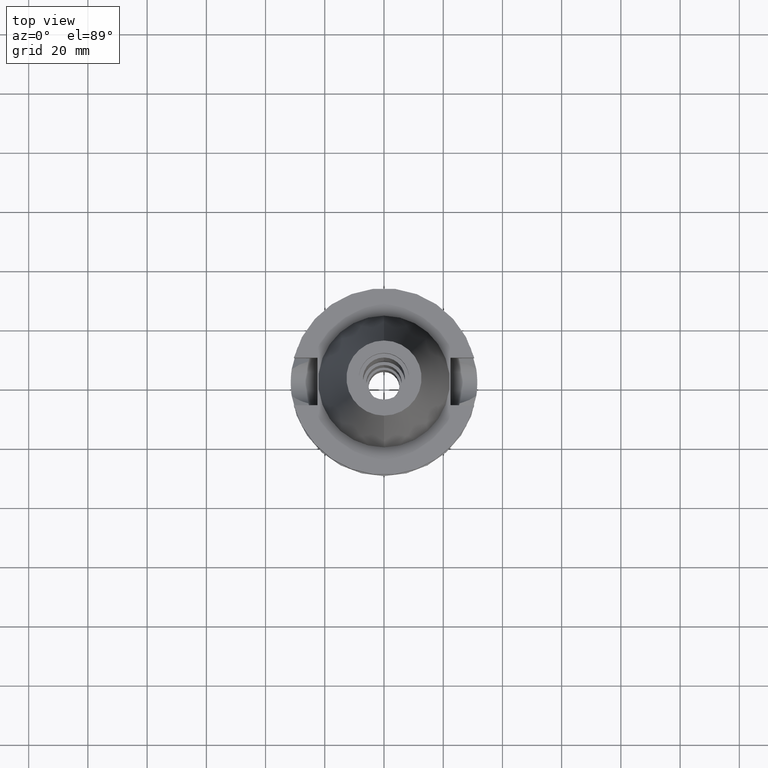
[diagram: clean part render]
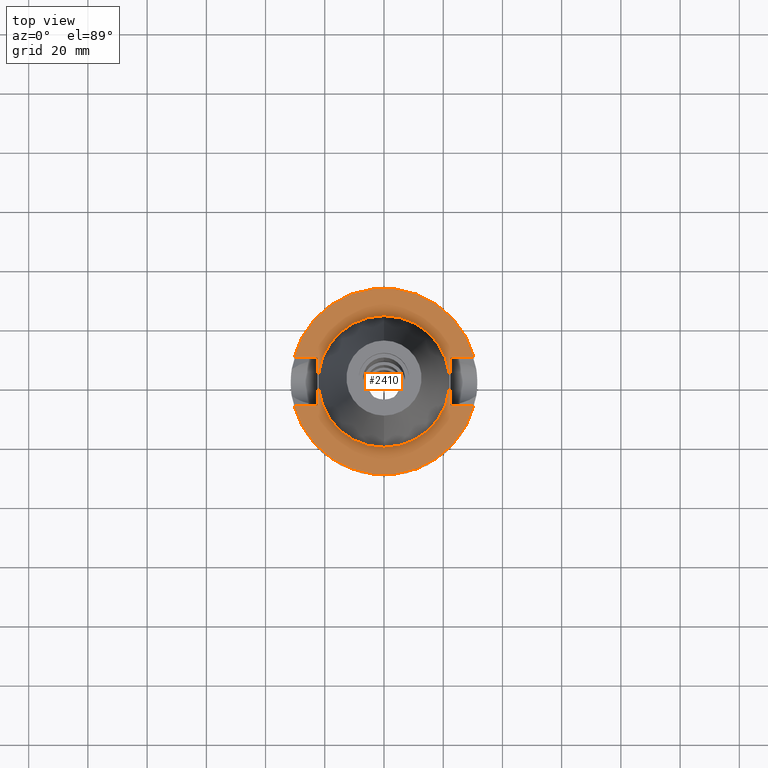
[diagram: same view with one face highlighted and labeled with its STEP entity id]
A machine part, top view. The second image highlights one B-rep face of the part: STEP entity #2410.
In plain terms, the highlighted planar face has unit normal (0, 0, -1).
Its self-contained STEP definition (entity closure, byte-faithful):
#33 = EDGE_CURVE ( 'NONE', #1168, #816, #1667, .T. ) ;
#53 = DIRECTION ( 'NONE',  ( 1.000000000000000000, -3.506251283225999947E-14, 0.0000000000000000000 ) ) ;
#55 = EDGE_LOOP ( 'NONE', ( #941, #1459, #1387, #885, #1794, #2115, #2482, #3142 ) ) ;
#101 = CARTESIAN_POINT ( 'NONE',  ( -22.50000000000000000, -8.050000000000000711, -1.000000000000000000 ) ) ;
#161 = EDGE_CURVE ( 'NONE', #935, #2461, #2906, .T. ) ;
#163 = CARTESIAN_POINT ( 'NONE',  ( 0.0000000000000000000, 2.162542550273999956E-14, -1.000000000000000000 ) ) ;
#179 = CIRCLE ( 'NONE', #1190, 31.50000000000000000 ) ;
#196 = CARTESIAN_POINT ( 'NONE',  ( 22.50000000000000000, -8.050000000000000711, -1.000000000000000000 ) ) ;
#199 = DIRECTION ( 'NONE',  ( -1.000000000000000000, 3.550916904668000126E-14, 0.0000000000000000000 ) ) ;
#209 = DIRECTION ( 'NONE',  ( 0.0000000000000000000, -1.000000000000000000, 0.0000000000000000000 ) ) ;
#266 = DIRECTION ( 'NONE',  ( 0.0000000000000000000, 0.0000000000000000000, -1.000000000000000000 ) ) ;
#285 = LINE ( 'NONE', #2644, #492 ) ;
#344 = CIRCLE ( 'NONE', #1460, 22.22500000000000142 ) ;
#348 = CARTESIAN_POINT ( 'NONE',  ( 0.0000000000000000000, 2.162542550273999956E-14, -1.000000000000000000 ) ) ;
#378 = CARTESIAN_POINT ( 'NONE',  ( -22.50000000000000000, 8.050000000000000711, -1.000000000000000000 ) ) ;
#445 = PLANE ( 'NONE',  #1858 ) ;
#473 = EDGE_CURVE ( 'NONE', #816, #1168, #344, .T. ) ;
#492 = VECTOR ( 'NONE', #53, 1000.000000000000000 ) ;
#500 = CARTESIAN_POINT ( 'NONE',  ( 30.45402272279000044, 8.050000000000000711, -1.000000000000000000 ) ) ;
#539 = LINE ( 'NONE', #2714, #1412 ) ;
#581 = VECTOR ( 'NONE', #3103, 1000.000000000000000 ) ;
#615 = LINE ( 'NONE', #101, #2716 ) ;
#659 = CARTESIAN_POINT ( 'NONE',  ( -30.45402272279000044, 8.050000000000000711, -1.000000000000000000 ) ) ;
#661 = VERTEX_POINT ( 'NONE', #196 ) ;
#676 = CARTESIAN_POINT ( 'NONE',  ( 0.0000000000000000000, 1.212400331155999925E-14, -1.000000000000000000 ) ) ;
#682 = CARTESIAN_POINT ( 'NONE',  ( 0.0000000000000000000, -22.22500000000000142, -1.000000000000000000 ) ) ;
#703 = DIRECTION ( 'NONE',  ( 0.0000000000000000000, 1.000000000000000000, 0.0000000000000000000 ) ) ;
#813 = EDGE_CURVE ( 'NONE', #661, #2930, #539, .T. ) ;
#816 = VERTEX_POINT ( 'NONE', #1033 ) ;
#862 = VERTEX_POINT ( 'NONE', #500 ) ;
#865 = FACE_OUTER_BOUND ( 'NONE', #55, .T. ) ;
#885 = ORIENTED_EDGE ( 'NONE', *, *, #2355, .F. ) ;
#935 = VERTEX_POINT ( 'NONE', #1819 ) ;
#941 = ORIENTED_EDGE ( 'NONE', *, *, #161, .T. ) ;
#991 = VERTEX_POINT ( 'NONE', #378 ) ;
#1033 = CARTESIAN_POINT ( 'NONE',  ( 0.0000000000000000000, 22.22500000000000142, -1.000000000000000000 ) ) ;
#1118 = DIRECTION ( 'NONE',  ( 0.0000000000000000000, 0.0000000000000000000, 1.000000000000000000 ) ) ;
#1137 = DIRECTION ( 'NONE',  ( 0.0000000000000000000, -1.000000000000000000, 0.0000000000000000000 ) ) ;
#1145 = DIRECTION ( 'NONE',  ( 0.0000000000000000000, 0.0000000000000000000, -1.000000000000000000 ) ) ;
#1153 = CARTESIAN_POINT ( 'NONE',  ( -22.50000000000000000, -8.050000000000000711, -1.000000000000000000 ) ) ;
#1168 = VERTEX_POINT ( 'NONE', #682 ) ;
#1180 = CARTESIAN_POINT ( 'NONE',  ( 30.45402272279000044, -8.050000000000000711, -1.000000000000000000 ) ) ;
#1181 = CARTESIAN_POINT ( 'NONE',  ( 22.50000000000000000, 8.050000000000000711, -1.000000000000000000 ) ) ;
#1190 = AXIS2_PLACEMENT_3D ( 'NONE', #1417, #1145, #209 ) ;
#1236 = DIRECTION ( 'NONE',  ( 1.000000000000000000, 3.573249715389999860E-14, 0.0000000000000000000 ) ) ;
#1248 = AXIS2_PLACEMENT_3D ( 'NONE', #348, #2150, #1428 ) ;
#1358 = VERTEX_POINT ( 'NONE', #659 ) ;
#1377 = LINE ( 'NONE', #2134, #581 ) ;
#1387 = ORIENTED_EDGE ( 'NONE', *, *, #813, .F. ) ;
#1412 = VECTOR ( 'NONE', #1236, 1000.000000000000000 ) ;
#1413 = DIRECTION ( 'NONE',  ( 0.0000000000000000000, 0.0000000000000000000, -1.000000000000000000 ) ) ;
#1417 = CARTESIAN_POINT ( 'NONE',  ( 0.0000000000000000000, 2.162542550273999956E-14, -1.000000000000000000 ) ) ;
#1428 = DIRECTION ( 'NONE',  ( 0.0000000000000000000, -1.000000000000000000, 0.0000000000000000000 ) ) ;
#1458 = VERTEX_POINT ( 'NONE', #1181 ) ;
#1459 = ORIENTED_EDGE ( 'NONE', *, *, #3084, .F. ) ;
#1460 = AXIS2_PLACEMENT_3D ( 'NONE', #163, #1118, #2038 ) ;
#1471 = EDGE_CURVE ( 'NONE', #1458, #862, #285, .T. ) ;
#1489 = CIRCLE ( 'NONE', #1956, 31.50000000000000000 ) ;
#1583 = LINE ( 'NONE', #1839, #2709 ) ;
#1667 = CIRCLE ( 'NONE', #1248, 22.22500000000000142 ) ;
#1778 = ORIENTED_EDGE ( 'NONE', *, *, #33, .F. ) ;
#1794 = ORIENTED_EDGE ( 'NONE', *, *, #1471, .T. ) ;
#1817 = DIRECTION ( 'NONE',  ( 0.0000000000000000000, 1.000000000000000000, 0.0000000000000000000 ) ) ;
#1819 = CARTESIAN_POINT ( 'NONE',  ( -22.50000000000000000, -8.050000000000000711, -1.000000000000000000 ) ) ;
#1839 = CARTESIAN_POINT ( 'NONE',  ( 22.50000000000000000, 8.050000000000000711, -1.000000000000000000 ) ) ;
#1858 = AXIS2_PLACEMENT_3D ( 'NONE', #676, #1413, #2858 ) ;
#1890 = EDGE_LOOP ( 'NONE', ( #2116, #1778 ) ) ;
#1956 = AXIS2_PLACEMENT_3D ( 'NONE', #2183, #266, #703 ) ;
#1988 = EDGE_CURVE ( 'NONE', #1358, #862, #1489, .T. ) ;
#2038 = DIRECTION ( 'NONE',  ( 0.0000000000000000000, 1.000000000000000000, 0.0000000000000000000 ) ) ;
#2115 = ORIENTED_EDGE ( 'NONE', *, *, #1988, .F. ) ;
#2116 = ORIENTED_EDGE ( 'NONE', *, *, #473, .F. ) ;
#2134 = CARTESIAN_POINT ( 'NONE',  ( -22.50000000000000000, 8.050000000000000711, -1.000000000000000000 ) ) ;
#2150 = DIRECTION ( 'NONE',  ( 0.0000000000000000000, 0.0000000000000000000, 1.000000000000000000 ) ) ;
#2183 = CARTESIAN_POINT ( 'NONE',  ( 0.0000000000000000000, 2.162542550273999956E-14, -1.000000000000000000 ) ) ;
#2187 = CARTESIAN_POINT ( 'NONE',  ( -30.45402272279000044, -8.050000000000000711, -1.000000000000000000 ) ) ;
#2355 = EDGE_CURVE ( 'NONE', #1458, #661, #1583, .T. ) ;
#2374 = EDGE_CURVE ( 'NONE', #991, #1358, #1377, .T. ) ;
#2410 = ADVANCED_FACE ( 'NONE', ( #865, #2802 ), #445, .F. ) ;
#2461 = VERTEX_POINT ( 'NONE', #2187 ) ;
#2482 = ORIENTED_EDGE ( 'NONE', *, *, #2374, .F. ) ;
#2570 = VECTOR ( 'NONE', #199, 1000.000000000000000 ) ;
#2644 = CARTESIAN_POINT ( 'NONE',  ( 22.50000000000000000, 8.050000000000000711, -1.000000000000000000 ) ) ;
#2705 = EDGE_CURVE ( 'NONE', #935, #991, #615, .T. ) ;
#2709 = VECTOR ( 'NONE', #1137, 1000.000000000000000 ) ;
#2714 = CARTESIAN_POINT ( 'NONE',  ( 22.50000000000000000, -8.050000000000000711, -1.000000000000000000 ) ) ;
#2716 = VECTOR ( 'NONE', #1817, 1000.000000000000000 ) ;
#2802 = FACE_BOUND ( 'NONE', #1890, .T. ) ;
#2858 = DIRECTION ( 'NONE',  ( 0.0000000000000000000, -1.000000000000000000, 0.0000000000000000000 ) ) ;
#2906 = LINE ( 'NONE', #1153, #2570 ) ;
#2930 = VERTEX_POINT ( 'NONE', #1180 ) ;
#3084 = EDGE_CURVE ( 'NONE', #2930, #2461, #179, .T. ) ;
#3103 = DIRECTION ( 'NONE',  ( -1.000000000000000000, -3.550916904668000126E-14, 0.0000000000000000000 ) ) ;
#3142 = ORIENTED_EDGE ( 'NONE', *, *, #2705, .F. ) ;